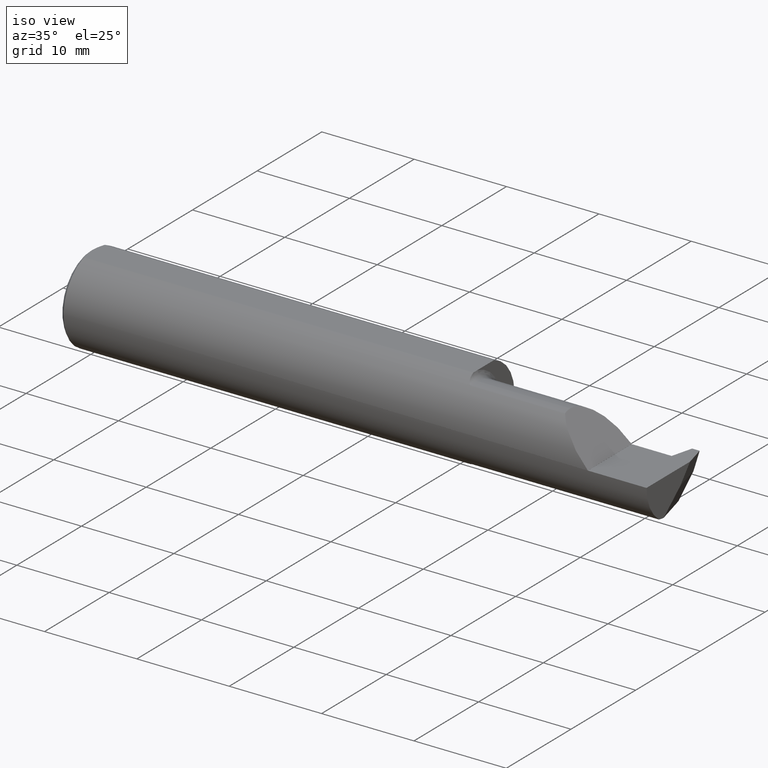
[diagram: clean part render]
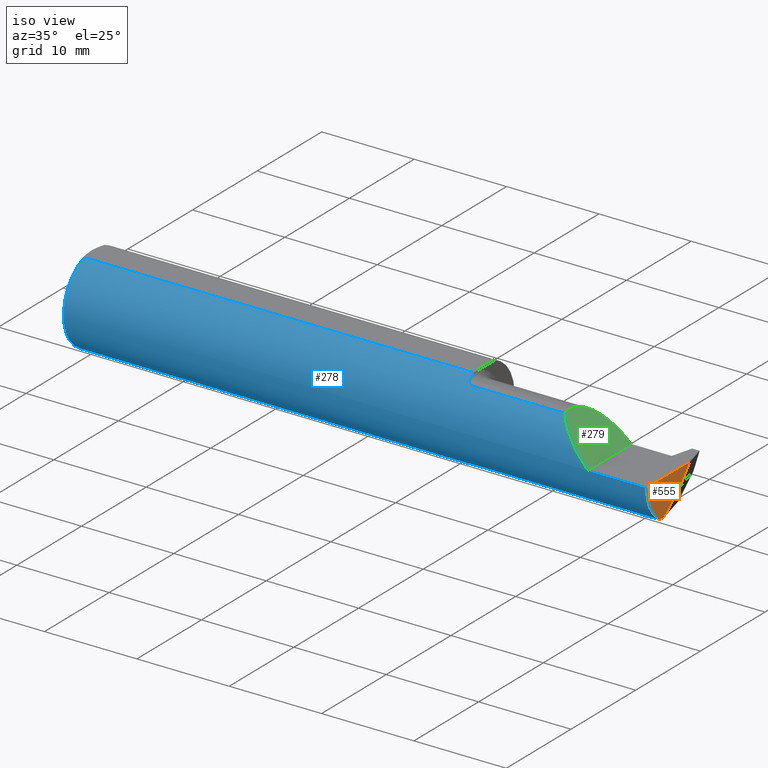
[diagram: same view with three faces highlighted in distinct colors, each labeled with its STEP entity id]
A machine part, iso view with three faces highlighted in distinct colors.
Their STEP definitions:

[orange] entity #555 — the highlighted planar face has unit normal (1, 0, 0).
#7 = AXIS2_PLACEMENT_3D ( 'NONE', #136, #528, #61 ) ;
#55 = ORIENTED_EDGE ( 'NONE', *, *, #881, .F. ) ;
#57 = EDGE_LOOP ( 'NONE', ( #585, #715, #95, #55, #364 ) ) ;
#61 = DIRECTION ( 'NONE',  ( 0.000000000000000000, 0.000000000000000000, -1.000000000000000000 ) ) ;
#95 = ORIENTED_EDGE ( 'NONE', *, *, #925, .F. ) ;
#110 = VECTOR ( 'NONE', #120, 39.37007874015748854 ) ;
#120 = DIRECTION ( 'NONE',  ( 0.000000000000000000, -0.6426264403010707449, -0.7661796514042735762 ) ) ;
#136 = CARTESIAN_POINT ( 'NONE',  ( 2.500000000000000000, 0.000000000000000000, 0.000000000000000000 ) ) ;
#152 = VERTEX_POINT ( 'NONE', #564 ) ;
#153 = DIRECTION ( 'NONE',  ( 0.000000000000000000, -0.7660444431189792347, -0.6427876096865379196 ) ) ;
#213 = VERTEX_POINT ( 'NONE', #344 ) ;
#225 = PLANE ( 'NONE',  #713 ) ;
#258 = VECTOR ( 'NONE', #153, 39.37007874015748143 ) ;
#259 = VECTOR ( 'NONE', #485, 39.37007874015748143 ) ;
#266 = EDGE_CURVE ( 'NONE', #900, #770, #307, .T. ) ;
#275 = DIRECTION ( 'NONE',  ( 1.000000000000000000, -0.000000000000000000, -0.000000000000000000 ) ) ;
#302 = FACE_OUTER_BOUND ( 'NONE', #57, .T. ) ;
#307 = CIRCLE ( 'NONE', #559, 0.1549999999999999434 ) ;
#331 = LINE ( 'NONE', #928, #259 ) ;
#344 = CARTESIAN_POINT ( 'NONE',  ( 2.500000000000000000, 0.07784888572242860960, 0.000000000000000000 ) ) ;
#350 = CARTESIAN_POINT ( 'NONE',  ( 2.500000000000000000, 0.04569972933712732749, -0.03833024582787391416 ) ) ;
#364 = ORIENTED_EDGE ( 'NONE', *, *, #799, .T. ) ;
#381 = DIRECTION ( 'NONE',  ( 0.000000000000000000, 0.000000000000000000, -1.000000000000000000 ) ) ;
#396 = CARTESIAN_POINT ( 'NONE',  ( 2.500000000000000000, 0.01913700171634113642, -0.06999999999999663436 ) ) ;
#404 = EDGE_CURVE ( 'NONE', #152, #770, #608, .T. ) ;
#426 = CARTESIAN_POINT ( 'NONE',  ( 2.500000000000000000, -0.1111655275381551039, -0.1508053314281814772 ) ) ;
#466 = CARTESIAN_POINT ( 'NONE',  ( 2.500000000000000000, -0.08199235869078609629, -0.1548576090188110155 ) ) ;
#477 = VERTEX_POINT ( 'NONE', #603 ) ;
#485 = DIRECTION ( 'NONE',  ( -0.000000000000000000, 1.000000000000000000, -0.000000000000000000 ) ) ;
#510 = LINE ( 'NONE', #350, #110 ) ;
#528 = DIRECTION ( 'NONE',  ( 1.000000000000000000, 0.000000000000000000, 0.000000000000000000 ) ) ;
#533 = CARTESIAN_POINT ( 'NONE',  ( 2.500000000000000000, 0.000000000000000000, 0.000000000000000000 ) ) ;
#555 = ADVANCED_FACE ( 'NONE', ( #302 ), #225, .T. ) ;
#559 = AXIS2_PLACEMENT_3D ( 'NONE', #958, #275, #798 ) ;
#564 = CARTESIAN_POINT ( 'NONE',  ( 2.500000000000000000, 0.01913700171634113642, -0.06999999999999663436 ) ) ;
#585 = ORIENTED_EDGE ( 'NONE', *, *, #266, .T. ) ;
#603 = CARTESIAN_POINT ( 'NONE',  ( 2.500000000000000000, -0.1873500000000000165, -4.469813191451678053E-17 ) ) ;
#608 = LINE ( 'NONE', #396, #258 ) ;
#713 = AXIS2_PLACEMENT_3D ( 'NONE', #533, #827, #381 ) ;
#715 = ORIENTED_EDGE ( 'NONE', *, *, #404, .F. ) ;
#770 = VERTEX_POINT ( 'NONE', #466 ) ;
#798 = DIRECTION ( 'NONE',  ( 0.000000000000000000, 0.000000000000000000, 1.000000000000000000 ) ) ;
#799 = EDGE_CURVE ( 'NONE', #477, #900, #889, .T. ) ;
#827 = DIRECTION ( 'NONE',  ( 1.000000000000000000, 0.000000000000000000, 0.000000000000000000 ) ) ;
#881 = EDGE_CURVE ( 'NONE', #477, #213, #331, .T. ) ;
#889 = CIRCLE ( 'NONE', #7, 0.1873499999999999888 ) ;
#900 = VERTEX_POINT ( 'NONE', #426 ) ;
#925 = EDGE_CURVE ( 'NONE', #213, #152, #510, .T. ) ;
#928 = CARTESIAN_POINT ( 'NONE',  ( 2.500000000000000000, 0.2000000000000000111, -4.469813191451678053E-17 ) ) ;
#958 = CARTESIAN_POINT ( 'NONE',  ( 2.500000000000000000, -0.07535000000000005582, 0.000000000000000000 ) ) ;

[blue] entity #278 — the highlighted cylindrical surface (partial cylindrical patch) has radius 4.7587 mm, axis along (-1, -0, -0).
#3 = CARTESIAN_POINT ( 'NONE',  ( 1.697842917297106347, -0.1111655275381357721, -0.1508053314282012392 ) ) ;
#6 = CIRCLE ( 'NONE', #807, 0.1873499999999999888 ) ;
#7 = AXIS2_PLACEMENT_3D ( 'NONE', #136, #528, #61 ) ;
#17 = VERTEX_POINT ( 'NONE', #614 ) ;
#28 = CARTESIAN_POINT ( 'NONE',  ( 2.500000000000000000, -0.1873499999999999888, -4.469813191451678053E-17 ) ) ;
#35 = CARTESIAN_POINT ( 'NONE',  ( 0.01500000000000079568, 0.000000000000000000, 0.000000000000000000 ) ) ;
#39 = CARTESIAN_POINT ( 'NONE',  ( 1.677871177471788711, -0.08285827945689638874, 0.1680807655869951678 ) ) ;
#44 = FACE_OUTER_BOUND ( 'NONE', #663, .T. ) ;
#46 = ORIENTED_EDGE ( 'NONE', *, *, #732, .T. ) ;
#48 = DIRECTION ( 'NONE',  ( -1.000000000000000000, -0.000000000000000000, -0.000000000000000000 ) ) ;
#53 = EDGE_CURVE ( 'NONE', #17, #401, #796, .T. ) ;
#59 = CARTESIAN_POINT ( 'NONE',  ( 1.692178388317598037, -0.1087237717143361843, 0.1525793417461625279 ) ) ;
#61 = DIRECTION ( 'NONE',  ( 0.000000000000000000, 0.000000000000000000, -1.000000000000000000 ) ) ;
#70 = CARTESIAN_POINT ( 'NONE',  ( 2.047499999999999876, -0.1111655275381552427, 0.1508053314281814494 ) ) ;
#85 = VERTEX_POINT ( 'NONE', #937 ) ;
#90 = VERTEX_POINT ( 'NONE', #932 ) ;
#96 = VECTOR ( 'NONE', #48, 39.37007874015748143 ) ;
#99 = EDGE_CURVE ( 'NONE', #788, #541, #184, .T. ) ;
#103 = B_SPLINE_CURVE_WITH_KNOTS ( 'NONE', 3,
 ( #519, #526, #744, #59, #372, #655, #949, #822, #723, #39, #352, #877 ),
 .UNSPECIFIED., .F., .F.,
 ( 4, 2, 2, 2, 2, 4 ),
 ( 0.000000000000000000, 0.0001618095382699952353, 0.0003236190765399904706, 0.0006472381530799941685, 0.0009708572296199979206, 0.001294476306160001564 ),
 .UNSPECIFIED. ) ;
#104 = DIRECTION ( 'NONE',  ( -1.000000000000000000, -0.000000000000000000, -0.000000000000000000 ) ) ;
#131 = CARTESIAN_POINT ( 'NONE',  ( 0.01500000000000079568, 0.000000000000000000, -0.1873499999999999888 ) ) ;
#136 = CARTESIAN_POINT ( 'NONE',  ( 2.500000000000000000, 0.000000000000000000, 0.000000000000000000 ) ) ;
#164 = EDGE_CURVE ( 'NONE', #852, #281, #431, .T. ) ;
#168 = CARTESIAN_POINT ( 'NONE',  ( 1.676478687487613639, -0.07534999999999991704, 0.1715295892841814940 ) ) ;
#173 = DIRECTION ( 'NONE',  ( 0.000000000000000000, 0.000000000000000000, 1.000000000000000000 ) ) ;
#181 = CARTESIAN_POINT ( 'NONE',  ( 2.500000000000000000, 0.06325108694718213631, 0.1763499999999999790 ) ) ;
#184 = LINE ( 'NONE', #181, #621 ) ;
#195 = DIRECTION ( 'NONE',  ( -1.000000000000000000, -0.000000000000000000, -0.000000000000000000 ) ) ;
#204 = AXIS2_PLACEMENT_3D ( 'NONE', #216, #195, #355 ) ;
#207 = VECTOR ( 'NONE', #777, 39.37007874015748143 ) ;
#211 = DIRECTION ( 'NONE',  ( 0.000000000000000000, 0.000000000000000000, -1.000000000000000000 ) ) ;
#216 = CARTESIAN_POINT ( 'NONE',  ( 2.500000000000000000, 0.000000000000000000, 0.000000000000000000 ) ) ;
#222 = ORIENTED_EDGE ( 'NONE', *, *, #632, .T. ) ;
#223 = EDGE_CURVE ( 'NONE', #246, #241, #507, .T. ) ;
#227 = AXIS2_PLACEMENT_3D ( 'NONE', #35, #347, #560 ) ;
#231 = CARTESIAN_POINT ( 'NONE',  ( 1.675000000000000044, 0.06325108694718213631, 0.1763499999999999790 ) ) ;
#236 = ORIENTED_EDGE ( 'NONE', *, *, #239, .T. ) ;
#239 = EDGE_CURVE ( 'NONE', #401, #852, #358, .T. ) ;
#240 = CARTESIAN_POINT ( 'NONE',  ( 1.677865082443892764, -0.08283314709417988198, -0.1680932348365286877 ) ) ;
#241 = VERTEX_POINT ( 'NONE', #947 ) ;
#246 = VERTEX_POINT ( 'NONE', #593 ) ;
#249 = CARTESIAN_POINT ( 'NONE',  ( 1.675439896557285646, -0.06737885671737320337, 0.1748695014197203801 ) ) ;
#254 = DIRECTION ( 'NONE',  ( 0.000000000000000000, 0.000000000000000000, -1.000000000000000000 ) ) ;
#262 = ORIENTED_EDGE ( 'NONE', *, *, #799, .F. ) ;
#265 = DIRECTION ( 'NONE',  ( 1.000000000000000000, 0.000000000000000000, 0.000000000000000000 ) ) ;
#272 = CARTESIAN_POINT ( 'NONE',  ( 1.699999999999999956, -0.1111655275381552427, 0.1508053314281814494 ) ) ;
#278 = ADVANCED_FACE ( 'NONE', ( #44 ), #514, .T. ) ;
#281 = VERTEX_POINT ( 'NONE', #131 ) ;
#285 = VERTEX_POINT ( 'NONE', #446 ) ;
#296 = DIRECTION ( 'NONE',  ( 1.000000000000000000, 0.000000000000000000, 0.000000000000000000 ) ) ;
#299 = CARTESIAN_POINT ( 'NONE',  ( 2.250000000000000000, -0.1873496730715054903, 0.0003499999999991848933 ) ) ;
#300 = EDGE_CURVE ( 'NONE', #246, #541, #6, .T. ) ;
#304 = CARTESIAN_POINT ( 'NONE',  ( 2.099544668571818207, -0.1111655275381547570, 0.1508053314281816715 ) ) ;
#308 = CARTESIAN_POINT ( 'NONE',  ( 1.699999999999999956, -0.1111655275381552427, -0.1508053314281814494 ) ) ;
#310 = VECTOR ( 'NONE', #689, 39.37007874015748143 ) ;
#313 = CARTESIAN_POINT ( 'NONE',  ( 1.679948053471882696, -0.09007176591159221646, -0.1643281559590496765 ) ) ;
#318 = CARTESIAN_POINT ( 'NONE',  ( 1.676478687487605423, -0.07534999999994895781, -0.1715295892842039482 ) ) ;
#338 = DIRECTION ( 'NONE',  ( -1.000000000000000000, -0.000000000000000000, -0.000000000000000000 ) ) ;
#340 = CIRCLE ( 'NONE', #934, 0.1873499999999999888 ) ;
#347 = DIRECTION ( 'NONE',  ( 1.000000000000000000, -0.000000000000000000, -0.000000000000000000 ) ) ;
#352 = CARTESIAN_POINT ( 'NONE',  ( 1.677079511614913088, -0.07914804615830652035, 0.1698611728947836963 ) ) ;
#355 = DIRECTION ( 'NONE',  ( 0.000000000000000000, 0.000000000000000000, 1.000000000000000000 ) ) ;
#358 = LINE ( 'NONE', #439, #96 ) ;
#372 = CARTESIAN_POINT ( 'NONE',  ( 1.690624326360086416, -0.1074933921529483416, 0.1534530870474001274 ) ) ;
#378 = CARTESIAN_POINT ( 'NONE',  ( 2.135462471271803331, -0.1598910295916955993, 0.1148875287281965335 ) ) ;
#383 = CARTESIAN_POINT ( 'NONE',  ( 2.099544668571818207, -0.1111655275381547570, 0.1508053314281816715 ) ) ;
#386 = CARTESIAN_POINT ( 'NONE',  ( 1.684565425567609909, -0.1003007981862104464, -0.1582877711856871539 ) ) ;
#395 = EDGE_CURVE ( 'NONE', #938, #17, #103, .T. ) ;
#401 = VERTEX_POINT ( 'NONE', #954 ) ;
#407 = CARTESIAN_POINT ( 'NONE',  ( 0.01500000000000016251, -0.06325108694718359348, 0.1763499999999999790 ) ) ;
#408 = CARTESIAN_POINT ( 'NONE',  ( 2.047499999999999876, -0.1111655275381552427, -0.1508053314281814494 ) ) ;
#426 = CARTESIAN_POINT ( 'NONE',  ( 2.500000000000000000, -0.1111655275381551039, -0.1508053314281814772 ) ) ;
#431 = CIRCLE ( 'NONE', #452, 0.1873499999999999888 ) ;
#432 = CIRCLE ( 'NONE', #227, 0.1873499999999999888 ) ;
#439 = CARTESIAN_POINT ( 'NONE',  ( 2.500000000000000000, -0.06325108694718213631, 0.1763499999999999790 ) ) ;
#440 = ORIENTED_EDGE ( 'NONE', *, *, #532, .F. ) ;
#446 = CARTESIAN_POINT ( 'NONE',  ( 2.250000000000000000, -0.1873499999999999888, -4.469813191451678053E-17 ) ) ;
#452 = AXIS2_PLACEMENT_3D ( 'NONE', #493, #722, #254 ) ;
#456 = LINE ( 'NONE', #70, #310 ) ;
#474 = CARTESIAN_POINT ( 'NONE',  ( 1.686554031168355561, -0.1034518926464918220, -0.1562319468430166391 ) ) ;
#477 = VERTEX_POINT ( 'NONE', #603 ) ;
#493 = CARTESIAN_POINT ( 'NONE',  ( 0.01500000000000079568, 0.000000000000000000, 0.000000000000000000 ) ) ;
#500 = ORIENTED_EDGE ( 'NONE', *, *, #688, .F. ) ;
#507 = B_SPLINE_CURVE_WITH_KNOTS ( 'NONE', 3,
 ( #579, #953, #965, #821 ),
 .UNSPECIFIED., .F., .F.,
 ( 4, 4 ),
 ( 0.000000000000000000, 0.0005353161947638540065 ),
 .UNSPECIFIED. ) ;
#514 = CYLINDRICAL_SURFACE ( 'NONE', #204, 0.1873499999999999888 ) ;
#519 = CARTESIAN_POINT ( 'NONE',  ( 1.699999999999999956, -0.1111655275381552427, 0.1508053314281814494 ) ) ;
#520 = ORIENTED_EDGE ( 'NONE', *, *, #99, .T. ) ;
#526 = CARTESIAN_POINT ( 'NONE',  ( 1.697840824787755221, -0.1111655275381552566, 0.1508053314281813939 ) ) ;
#528 = DIRECTION ( 'NONE',  ( 1.000000000000000000, 0.000000000000000000, 0.000000000000000000 ) ) ;
#532 = EDGE_CURVE ( 'NONE', #938, #740, #456, .T. ) ;
#538 = CARTESIAN_POINT ( 'NONE',  ( 1.681244079504313094, -0.09361870253556393850, -0.1623293170049111833 ) ) ;
#541 = VERTEX_POINT ( 'NONE', #231 ) ;
#542 = CARTESIAN_POINT ( 'NONE',  ( 1.695787183057444913, -0.1105751300725857506, -0.1512430703507947061 ) ) ;
#550 = EDGE_CURVE ( 'NONE', #241, #90, #962, .T. ) ;
#552 = ORIENTED_EDGE ( 'NONE', *, *, #300, .F. ) ;
#560 = DIRECTION ( 'NONE',  ( 0.000000000000000000, 0.000000000000000000, -1.000000000000000000 ) ) ;
#569 = ORIENTED_EDGE ( 'NONE', *, *, #395, .T. ) ;
#579 = CARTESIAN_POINT ( 'NONE',  ( 1.675000000000000044, -0.05559153948241538773, -0.1789122780526117285 ) ) ;
#593 = CARTESIAN_POINT ( 'NONE',  ( 1.675000000000000044, -0.05559153948241538773, -0.1789122780526117285 ) ) ;
#603 = CARTESIAN_POINT ( 'NONE',  ( 2.500000000000000000, -0.1873500000000000165, -4.469813191451678053E-17 ) ) ;
#614 = CARTESIAN_POINT ( 'NONE',  ( 1.676478687487613639, -0.07534999999999991704, 0.1715295892841814940 ) ) ;
#618 = CARTESIAN_POINT ( 'NONE',  ( 1.675855685269239670, -0.07141175738523403149, 0.1732595915669420672 ) ) ;
#621 = VECTOR ( 'NONE', #265, 39.37007874015748143 ) ;
#624 = ORIENTED_EDGE ( 'NONE', *, *, #223, .T. ) ;
#632 = EDGE_CURVE ( 'NONE', #281, #788, #432, .T. ) ;
#655 = CARTESIAN_POINT ( 'NONE',  ( 1.686565098989692757, -0.1034641170928918136, 0.1562236412899350446 ) ) ;
#656 = ORIENTED_EDGE ( 'NONE', *, *, #702, .T. ) ;
#663 = EDGE_LOOP ( 'NONE', ( #500, #262, #656, #963, #46, #440, #569, #869, #236, #795, #222, #520, #552, #624, #774 ) ) ;
#674 = EDGE_CURVE ( 'NONE', #285, #85, #340, .T. ) ;
#683 = CARTESIAN_POINT ( 'NONE',  ( 1.690623984237018318, -0.1074936703607914240, -0.1534529456673628667 ) ) ;
#688 = EDGE_CURVE ( 'NONE', #900, #90, #711, .T. ) ;
#689 = DIRECTION ( 'NONE',  ( 1.000000000000000000, 0.000000000000000000, 0.000000000000000000 ) ) ;
#702 = EDGE_CURVE ( 'NONE', #477, #285, #707, .T. ) ;
#707 = LINE ( 'NONE', #28, #950 ) ;
#711 = LINE ( 'NONE', #408, #207 ) ;
#722 = DIRECTION ( 'NONE',  ( 1.000000000000000000, -0.000000000000000000, -0.000000000000000000 ) ) ;
#723 = CARTESIAN_POINT ( 'NONE',  ( 1.679954557781144109, -0.09009039404888789793, 0.1643178600608700690 ) ) ;
#732 = EDGE_CURVE ( 'NONE', #85, #740, #850, .T. ) ;
#740 = VERTEX_POINT ( 'NONE', #383 ) ;
#743 = CARTESIAN_POINT ( 'NONE',  ( 1.675000000000000044, 0.000000000000000000, 0.000000000000000000 ) ) ;
#744 = CARTESIAN_POINT ( 'NONE',  ( 1.695768331180431465, -0.1105668026956974082, 0.1512491196838317842 ) ) ;
#762 = CARTESIAN_POINT ( 'NONE',  ( 0.01500000000000079568, 0.06325108694718213631, 0.1763499999999999790 ) ) ;
#773 = CARTESIAN_POINT ( 'NONE',  ( 1.692175898121774713, -0.1087238381091982370, -0.1525793326322721077 ) ) ;
#774 = ORIENTED_EDGE ( 'NONE', *, *, #550, .T. ) ;
#777 = DIRECTION ( 'NONE',  ( -1.000000000000000000, -0.000000000000000000, -0.000000000000000000 ) ) ;
#788 = VERTEX_POINT ( 'NONE', #762 ) ;
#795 = ORIENTED_EDGE ( 'NONE', *, *, #164, .T. ) ;
#796 = B_SPLINE_CURVE_WITH_KNOTS ( 'NONE', 3,
 ( #168, #618, #249, #901 ),
 .UNSPECIFIED., .F., .F.,
 ( 4, 4 ),
 ( 0.001294476306160001564, 0.001630041063685024744 ),
 .UNSPECIFIED. ) ;
#799 = EDGE_CURVE ( 'NONE', #477, #900, #889, .T. ) ;
#807 = AXIS2_PLACEMENT_3D ( 'NONE', #743, #296, #211 ) ;
#821 = CARTESIAN_POINT ( 'NONE',  ( 1.676478687487605423, -0.07534999999994895781, -0.1715295892842039482 ) ) ;
#822 = CARTESIAN_POINT ( 'NONE',  ( 1.681253303781169439, -0.09363708362384966233, 0.1623181733163006346 ) ) ;
#850 =( BOUNDED_CURVE ( )  B_SPLINE_CURVE ( 3, ( #299, #908, #378, #304 ),
 .UNSPECIFIED., .F., .T. ) 
 B_SPLINE_CURVE_WITH_KNOTS ( ( 4, 4 ),
 ( 4.714257142666966161, 5.647961724597865718 ),
 .UNSPECIFIED. ) 
 CURVE ( )  GEOMETRIC_REPRESENTATION_ITEM ( )  RATIONAL_B_SPLINE_CURVE ( ( 1.000000000000000000, 0.9286596154903572486, 0.9286596154903572486, 1.000000000000000000 ) ) 
 REPRESENTATION_ITEM ( '' )  );
#852 = VERTEX_POINT ( 'NONE', #407 ) ;
#854 = CARTESIAN_POINT ( 'NONE',  ( 2.250000000000000000, 0.000000000000000000, 0.000000000000000000 ) ) ;
#869 = ORIENTED_EDGE ( 'NONE', *, *, #53, .T. ) ;
#877 = CARTESIAN_POINT ( 'NONE',  ( 1.676478687487613639, -0.07534999999999991704, 0.1715295892841814940 ) ) ;
#889 = CIRCLE ( 'NONE', #7, 0.1873499999999999888 ) ;
#900 = VERTEX_POINT ( 'NONE', #426 ) ;
#901 = CARTESIAN_POINT ( 'NONE',  ( 1.675210246786176693, -0.06325108694718213631, 0.1763499999999999790 ) ) ;
#908 = CARTESIAN_POINT ( 'NONE',  ( 2.189466948591779705, -0.1872365873764759991, 0.06088305140821962530 ) ) ;
#910 = CARTESIAN_POINT ( 'NONE',  ( 1.677076714346777297, -0.07913036352372353199, -0.1698689405721950929 ) ) ;
#932 = CARTESIAN_POINT ( 'NONE',  ( 1.699999999999999956, -0.1111655275381552427, -0.1508053314281814494 ) ) ;
#934 = AXIS2_PLACEMENT_3D ( 'NONE', #854, #104, #173 ) ;
#937 = CARTESIAN_POINT ( 'NONE',  ( 2.250000000000000000, -0.1873496730715054903, 0.0003499999999991848933 ) ) ;
#938 = VERTEX_POINT ( 'NONE', #272 ) ;
#947 = CARTESIAN_POINT ( 'NONE',  ( 1.676478687487605423, -0.07534999999994895781, -0.1715295892842039482 ) ) ;
#949 = CARTESIAN_POINT ( 'NONE',  ( 1.684555280550785961, -0.1002805646452516880, 0.1583000352897936946 ) ) ;
#950 = VECTOR ( 'NONE', #338, 39.37007874015748143 ) ;
#953 = CARTESIAN_POINT ( 'NONE',  ( 1.675000000000000044, -0.06239895713696063523, -0.1767970804181337729 ) ) ;
#954 = CARTESIAN_POINT ( 'NONE',  ( 1.675210246786176693, -0.06325108694718213631, 0.1763499999999999790 ) ) ;
#962 = B_SPLINE_CURVE_WITH_KNOTS ( 'NONE', 3,
 ( #318, #910, #240, #313, #538, #386, #474, #683, #773, #542, #3, #308 ),
 .UNSPECIFIED., .F., .F.,
 ( 4, 2, 2, 2, 2, 4 ),
 ( 0.0005353161947638540065, 0.0008532056447682662310, 0.001171095094772678456, 0.001488984544777090680, 0.001647929269779296792, 0.001806873994781502905 ),
 .UNSPECIFIED. ) ;
#963 = ORIENTED_EDGE ( 'NONE', *, *, #674, .T. ) ;
#965 = CARTESIAN_POINT ( 'NONE',  ( 1.675471628390130086, -0.06898398245409141649, -0.1743260713610383095 ) ) ;

[green] entity #279 — the highlighted planar face has unit normal (-0.7071, 0, -0.7071).
#16 = CARTESIAN_POINT ( 'NONE',  ( 2.159365813042176008, 0.07944494647492639228, 0.09098418695782312104 ) ) ;
#65 =( BOUNDED_CURVE ( )  B_SPLINE_CURVE ( 3, ( #464, #16, #677, #851 ),
 .UNSPECIFIED., .F., .T. ) 
 B_SPLINE_CURVE_WITH_KNOTS ( ( 4, 4 ),
 ( 4.714647046819741227, 6.283185307179586232 ),
 .UNSPECIFIED. ) 
 CURVE ( )  GEOMETRIC_REPRESENTATION_ITEM ( )  RATIONAL_B_SPLINE_CURVE ( ( 1.000000000000000000, 0.8052697849207437475, 0.8052697849207437475, 1.000000000000000000 ) ) 
 REPRESENTATION_ITEM ( '' )  );
#66 = CARTESIAN_POINT ( 'NONE',  ( 2.095349999999999380, -0.07535000000000005582, 0.1549999999999999989 ) ) ;
#85 = VERTEX_POINT ( 'NONE', #937 ) ;
#108 = ORIENTED_EDGE ( 'NONE', *, *, #647, .F. ) ;
#134 = PLANE ( 'NONE',  #856 ) ;
#135 = ORIENTED_EDGE ( 'NONE', *, *, #489, .T. ) ;
#167 = CARTESIAN_POINT ( 'NONE',  ( 2.096754579645089045, -0.09941754239787796432, 0.1535954203549101948 ) ) ;
#170 = CARTESIAN_POINT ( 'NONE',  ( 2.250000000000000000, 0.07964960483820594794, 0.0003499999999991848933 ) ) ;
#260 = CARTESIAN_POINT ( 'NONE',  ( 2.250000000000000000, 0.2000000000000000111, 0.0003499999999991848933 ) ) ;
#279 = ADVANCED_FACE ( 'NONE', ( #812 ), #134, .F. ) ;
#299 = CARTESIAN_POINT ( 'NONE',  ( 2.250000000000000000, -0.1873496730715054903, 0.0003499999999991848933 ) ) ;
#304 = CARTESIAN_POINT ( 'NONE',  ( 2.099544668571818207, -0.1111655275381547570, 0.1508053314281816715 ) ) ;
#378 = CARTESIAN_POINT ( 'NONE',  ( 2.135462471271803331, -0.1598910295916955993, 0.1148875287281965335 ) ) ;
#383 = CARTESIAN_POINT ( 'NONE',  ( 2.099544668571818207, -0.1111655275381547570, 0.1508053314281816715 ) ) ;
#419 =( BOUNDED_CURVE ( )  B_SPLINE_CURVE ( 3, ( #66, #922, #167, #460 ),
 .UNSPECIFIED., .F., .T. ) 
 B_SPLINE_CURVE_WITH_KNOTS ( ( 4, 4 ),
 ( 0.000000000000000000, 0.2331751639699329859 ),
 .UNSPECIFIED. ) 
 CURVE ( )  GEOMETRIC_REPRESENTATION_ITEM ( )  RATIONAL_B_SPLINE_CURVE ( ( 1.000000000000000000, 0.9954742418208948340, 0.9954742418208948340, 1.000000000000000000 ) ) 
 REPRESENTATION_ITEM ( '' )  );
#437 = EDGE_LOOP ( 'NONE', ( #108, #844, #135, #819 ) ) ;
#460 = CARTESIAN_POINT ( 'NONE',  ( 2.099544668571818207, -0.1111655275381547570, 0.1508053314281816715 ) ) ;
#462 = CARTESIAN_POINT ( 'NONE',  ( 2.095349999999999380, -0.07535000000000005582, 0.1549999999999999989 ) ) ;
#464 = CARTESIAN_POINT ( 'NONE',  ( 2.250000000000000000, 0.07964960483820594794, 0.0003499999999991848933 ) ) ;
#488 = LINE ( 'NONE', #260, #779 ) ;
#489 = EDGE_CURVE ( 'NONE', #776, #740, #419, .T. ) ;
#502 = EDGE_CURVE ( 'NONE', #680, #776, #65, .T. ) ;
#503 = DIRECTION ( 'NONE',  ( -0.7071067811865469066, 0.000000000000000000, 0.7071067811865480168 ) ) ;
#525 = CARTESIAN_POINT ( 'NONE',  ( 2.073999999999999400, 0.1000000000000000056, 0.1763499999999999790 ) ) ;
#647 = EDGE_CURVE ( 'NONE', #680, #85, #488, .T. ) ;
#677 = CARTESIAN_POINT ( 'NONE',  ( 2.095349999999998936, 0.01528441802401257592, 0.1550000000000000266 ) ) ;
#680 = VERTEX_POINT ( 'NONE', #170 ) ;
#732 = EDGE_CURVE ( 'NONE', #85, #740, #850, .T. ) ;
#734 = DIRECTION ( 'NONE',  ( -0.7071067811865481278, 0.000000000000000000, -0.7071067811865470176 ) ) ;
#740 = VERTEX_POINT ( 'NONE', #383 ) ;
#776 = VERTEX_POINT ( 'NONE', #462 ) ;
#779 = VECTOR ( 'NONE', #859, 39.37007874015748143 ) ;
#812 = FACE_OUTER_BOUND ( 'NONE', #437, .T. ) ;
#819 = ORIENTED_EDGE ( 'NONE', *, *, #732, .F. ) ;
#844 = ORIENTED_EDGE ( 'NONE', *, *, #502, .T. ) ;
#850 =( BOUNDED_CURVE ( )  B_SPLINE_CURVE ( 3, ( #299, #908, #378, #304 ),
 .UNSPECIFIED., .F., .T. ) 
 B_SPLINE_CURVE_WITH_KNOTS ( ( 4, 4 ),
 ( 4.714257142666966161, 5.647961724597865718 ),
 .UNSPECIFIED. ) 
 CURVE ( )  GEOMETRIC_REPRESENTATION_ITEM ( )  RATIONAL_B_SPLINE_CURVE ( ( 1.000000000000000000, 0.9286596154903572486, 0.9286596154903572486, 1.000000000000000000 ) ) 
 REPRESENTATION_ITEM ( '' )  );
#851 = CARTESIAN_POINT ( 'NONE',  ( 2.095349999999999380, -0.07535000000000005582, 0.1549999999999999989 ) ) ;
#856 = AXIS2_PLACEMENT_3D ( 'NONE', #525, #734, #503 ) ;
#859 = DIRECTION ( 'NONE',  ( 0.000000000000000000, -1.000000000000000000, 0.000000000000000000 ) ) ;
#908 = CARTESIAN_POINT ( 'NONE',  ( 2.189466948591779705, -0.1872365873764759991, 0.06088305140821962530 ) ) ;
#922 = CARTESIAN_POINT ( 'NONE',  ( 2.095349999999999380, -0.08742475677085130570, 0.1550000000000000266 ) ) ;
#937 = CARTESIAN_POINT ( 'NONE',  ( 2.250000000000000000, -0.1873496730715054903, 0.0003499999999991848933 ) ) ;